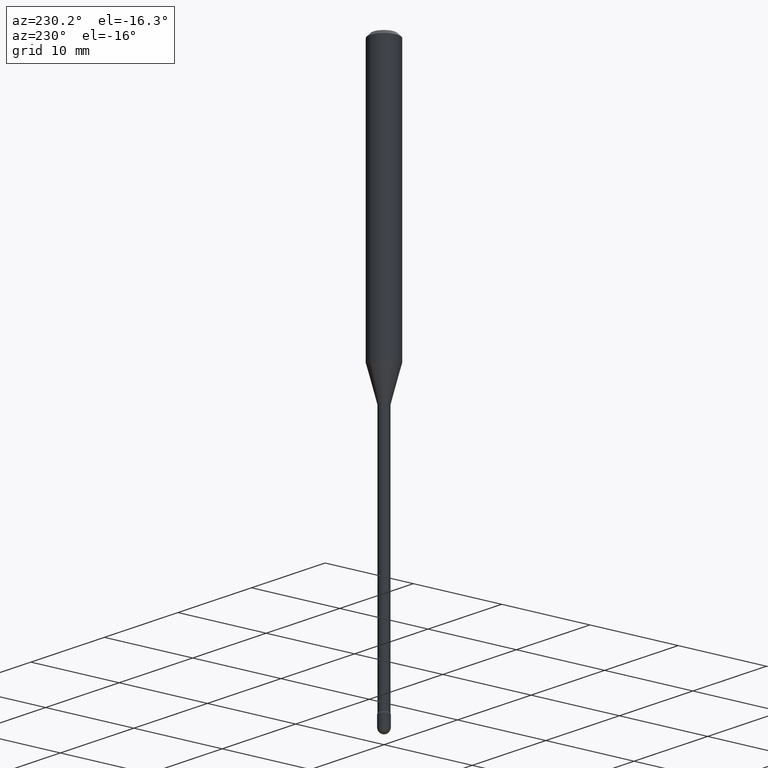
[diagram: clean part render]
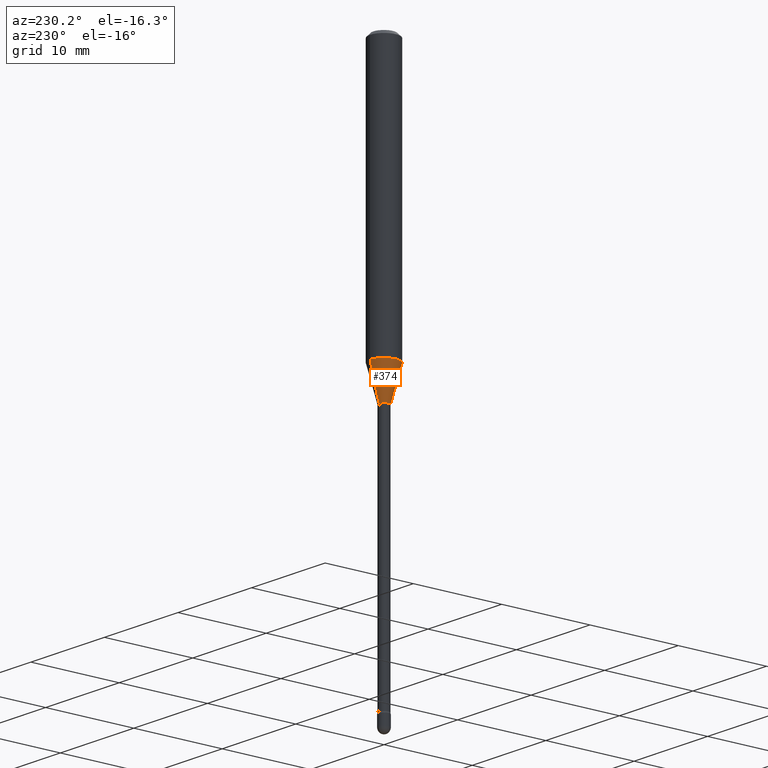
[diagram: same view with one face highlighted and labeled with its STEP entity id]
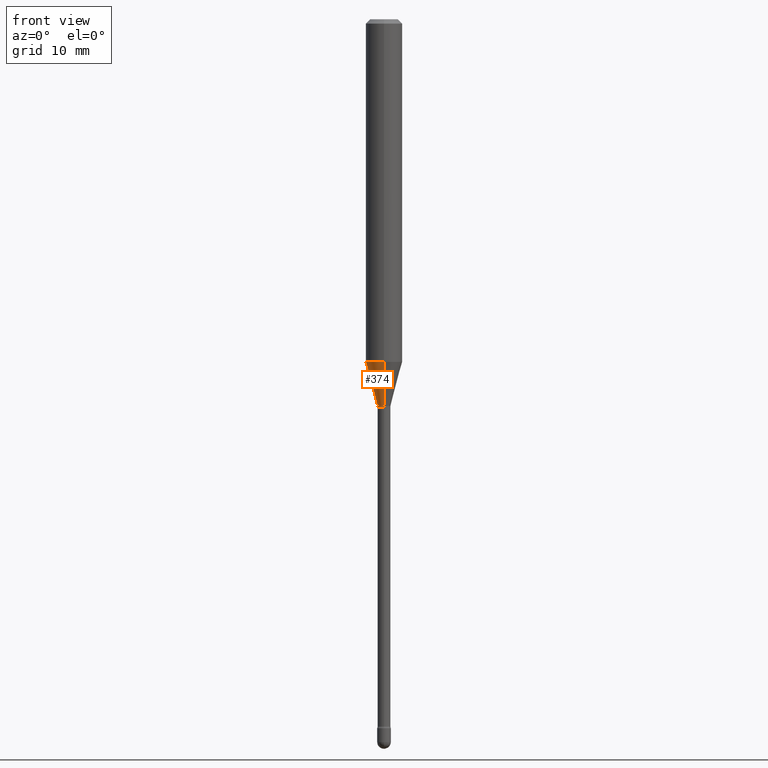
[diagram: same view with one face highlighted and labeled with its STEP entity id]
A machine part, auxiliary view. The second image highlights one B-rep face of the part: STEP entity #374.
A second angle (front view) of the same face is appended — the face is thin or edge-on in the first view.
In plain terms, the highlighted conical surface has half-angle 15 deg.
Its self-contained STEP definition (entity closure, byte-faithful):
#5 = VERTEX_POINT ( 'NONE', #68 ) ;
#31 = EDGE_CURVE ( 'NONE', #302, #5, #291, .T. ) ;
#50 = VERTEX_POINT ( 'NONE', #242 ) ;
#62 = LINE ( 'NONE', #92, #320 ) ;
#68 = CARTESIAN_POINT ( 'NONE',  ( 4.440892098500910152E-16, 0.06249999999999587830, -1.174225147374218237 ) ) ;
#92 = CARTESIAN_POINT ( 'NONE',  ( -1.578925554262807327E-16, -0.02261111260566860820, -1.323092501787273223 ) ) ;
#94 = FACE_OUTER_BOUND ( 'NONE', #147, .T. ) ;
#112 = AXIS2_PLACEMENT_3D ( 'NONE', #428, #342, #170 ) ;
#138 = CARTESIAN_POINT ( 'NONE',  ( -1.578925554262807327E-16, -0.02261111260566860820, -1.323092501787273223 ) ) ;
#147 = EDGE_LOOP ( 'NONE', ( #446, #232, #185, #545 ) ) ;
#160 = CIRCLE ( 'NONE', #530, 0.02261111260566398690 ) ;
#169 = EDGE_CURVE ( 'NONE', #5, #50, #371, .T. ) ;
#170 = DIRECTION ( 'NONE',  ( -6.982962677686265922E-15, -1.000000000000000000, 4.370956789862821150E-15 ) ) ;
#177 = DIRECTION ( 'NONE',  ( -6.982962677686265922E-15, -1.000000000000000000, 0.000000000000000000 ) ) ;
#185 = ORIENTED_EDGE ( 'NONE', *, *, #440, .T. ) ;
#232 = ORIENTED_EDGE ( 'NONE', *, *, #253, .T. ) ;
#242 = CARTESIAN_POINT ( 'NONE',  ( -4.364351673553631225E-16, -0.06250000000000412170, -1.174225147374217793 ) ) ;
#253 = EDGE_CURVE ( 'NONE', #302, #399, #160, .T. ) ;
#271 = CARTESIAN_POINT ( 'NONE',  ( 3.235565564445505174E-29, -4.619575515422923355E-15, -1.323092501787273223 ) ) ;
#277 = DIRECTION ( 'NONE',  ( -2.445456806742390166E-29, 3.491498522728124281E-15, 1.000000000000000000 ) ) ;
#291 = LINE ( 'NONE', #548, #494 ) ;
#295 = DIRECTION ( 'NONE',  ( 1.839019923739599526E-15, 0.2588190451025248473, 0.9659258262890673130 ) ) ;
#302 = VERTEX_POINT ( 'NONE', #348 ) ;
#320 = VECTOR ( 'NONE', #368, 39.37007874015749564 ) ;
#342 = DIRECTION ( 'NONE',  ( -2.445456806742390166E-29, 3.491498522728124281E-15, 1.000000000000000000 ) ) ;
#348 = CARTESIAN_POINT ( 'NONE',  ( 3.023754139721027843E-16, 0.02261111260565936906, -1.323092501787273223 ) ) ;
#366 = DIRECTION ( 'NONE',  ( -6.982962677686265922E-15, -1.000000000000000000, 0.000000000000000000 ) ) ;
#368 = DIRECTION ( 'NONE',  ( -1.807323732225328562E-15, -0.2588190451025179639, 0.9659258262890689783 ) ) ;
#371 = CIRCLE ( 'NONE', #112, 0.06250000000000000000 ) ;
#374 = ADVANCED_FACE ( 'NONE', ( #94 ), #402, .T. ) ;
#399 = VERTEX_POINT ( 'NONE', #138 ) ;
#402 = CONICAL_SURFACE ( 'NONE', #472, 0.02261111260566398690, 0.2617993877991501295 ) ;
#428 = CARTESIAN_POINT ( 'NONE',  ( 2.871516879294367278E-29, -4.099805367407296517E-15, -1.174225147374218015 ) ) ;
#439 = DIRECTION ( 'NONE',  ( -2.445456806742390166E-29, 3.491498522728124281E-15, 1.000000000000000000 ) ) ;
#440 = EDGE_CURVE ( 'NONE', #399, #50, #62, .T. ) ;
#446 = ORIENTED_EDGE ( 'NONE', *, *, #31, .F. ) ;
#455 = CARTESIAN_POINT ( 'NONE',  ( 3.235565564445505174E-29, -4.619575515422923355E-15, -1.323092501787273223 ) ) ;
#472 = AXIS2_PLACEMENT_3D ( 'NONE', #455, #277, #366 ) ;
#494 = VECTOR ( 'NONE', #295, 39.37007874015747433 ) ;
#530 = AXIS2_PLACEMENT_3D ( 'NONE', #271, #439, #177 ) ;
#545 = ORIENTED_EDGE ( 'NONE', *, *, #169, .F. ) ;
#548 = CARTESIAN_POINT ( 'NONE',  ( 1.606616180941141096E-16, 0.02261111260565936906, -1.323092501787273223 ) ) ;